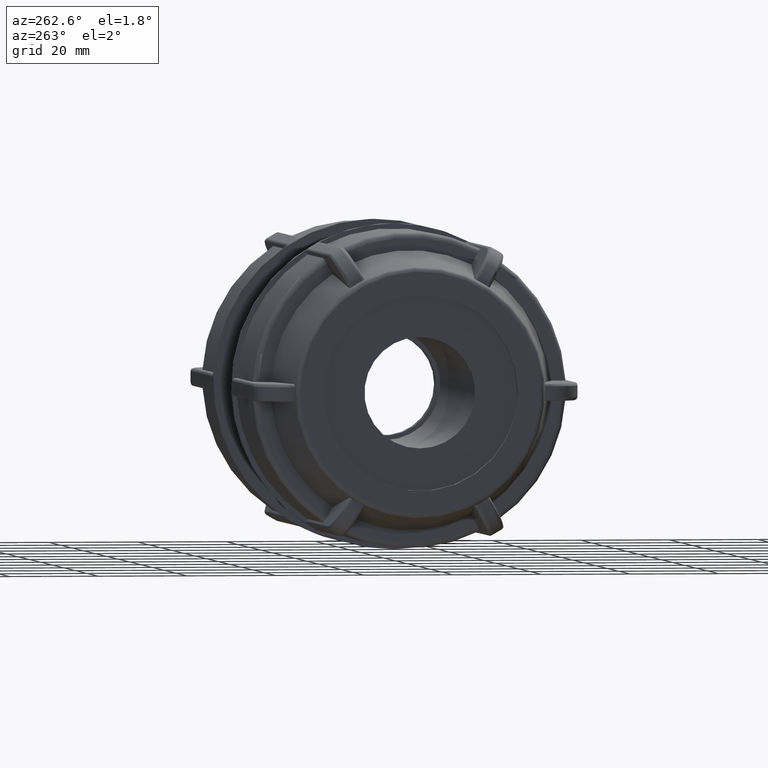
[diagram: clean part render]
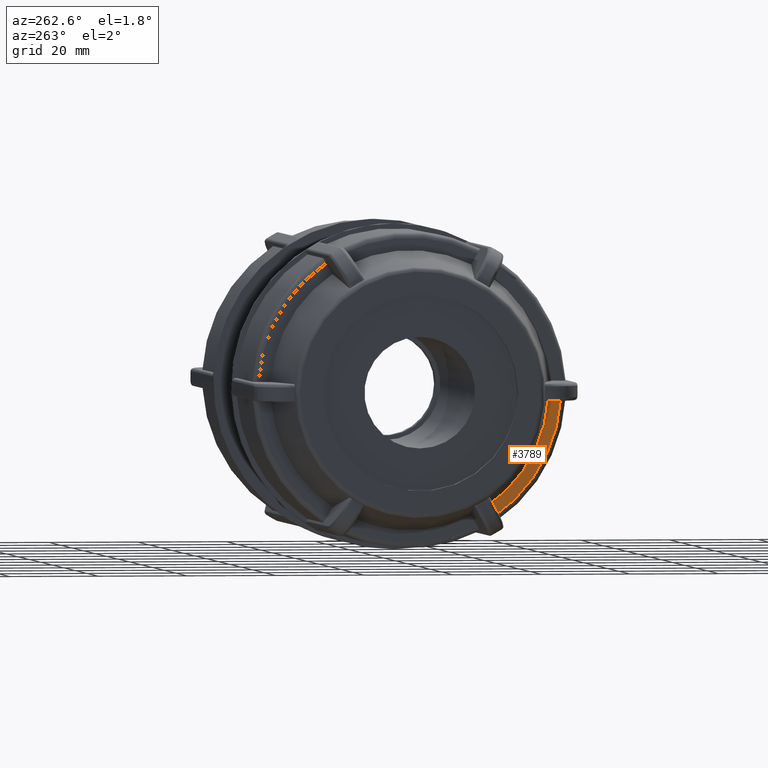
[diagram: same view with one face highlighted and labeled with its STEP entity id]
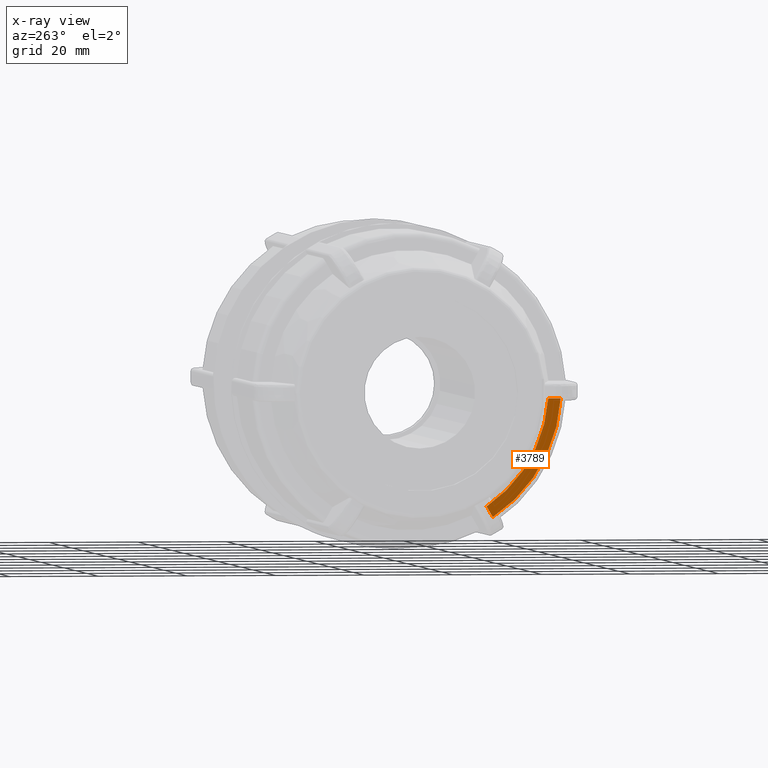
[diagram: x-ray of the same camera — body ghosted, the highlighted face saturated]
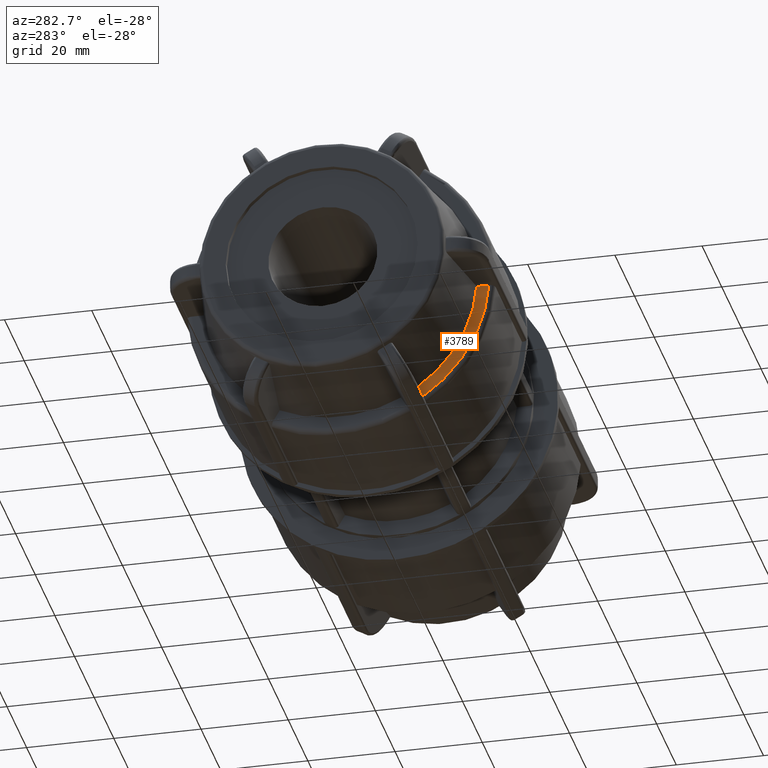
[diagram: same view with one face highlighted and labeled with its STEP entity id]
A machine part, auxiliary view. The second image highlights one B-rep face of the part: STEP entity #3789.
The next image is the same camera in x-ray: the body ghosted, the highlighted face saturated — about 0% of this face is hidden behind the body in this view.
A second angle (auxiliary view) of the same face is appended — the face is thin or edge-on in the first view.
In plain terms, the highlighted planar face has unit normal (1, 0, 0).
Its self-contained STEP definition (entity closure, byte-faithful):
#255=PLANE('',#4125);
#403=FACE_OUTER_BOUND('',#645,.T.);
#645=EDGE_LOOP('',(#2928,#2929,#2930,#2931));
#877=LINE('',#6010,#1105);
#917=LINE('',#6638,#1145);
#1105=VECTOR('',#4719,2.78117222986592);
#1145=VECTOR('',#4875,2.78117222986593);
#1361=CIRCLE('',#4126,34.135);
#1362=CIRCLE('',#4127,31.3590289824963);
#1610=VERTEX_POINT('',#5998);
#1611=VERTEX_POINT('',#6009);
#1678=VERTEX_POINT('',#6633);
#1679=VERTEX_POINT('',#6637);
#2036=EDGE_CURVE('',#1611,#1610,#877,.T.);
#2140=EDGE_CURVE('',#1679,#1678,#917,.T.);
#2156=EDGE_CURVE('',#1679,#1610,#1361,.T.);
#2157=EDGE_CURVE('',#1678,#1611,#1362,.T.);
#2928=ORIENTED_EDGE('',*,*,#2036,.T.);
#2929=ORIENTED_EDGE('',*,*,#2156,.F.);
#2930=ORIENTED_EDGE('',*,*,#2140,.T.);
#2931=ORIENTED_EDGE('',*,*,#2157,.T.);
#3789=ADVANCED_FACE('',(#403),#255,.F.);
#4125=AXIS2_PLACEMENT_3D('',#6686,#4902,#4903);
#4126=AXIS2_PLACEMENT_3D('',#6687,#4904,#4905);
#4127=AXIS2_PLACEMENT_3D('',#6688,#4906,#4907);
#4719=DIRECTION('',(1.53080849893419E-16,-0.500000000000001,-0.866025403784438));
#4875=DIRECTION('',(-3.06161699786838E-16,1.,-3.33066907387547E-16));
#4902=DIRECTION('center_axis',(1.,3.06161699786838E-16,0.));
#4903=DIRECTION('ref_axis',(0.,0.,-1.));
#4904=DIRECTION('center_axis',(1.,3.06161699786838E-16,0.));
#4905=DIRECTION('ref_axis',(3.06161699786838E-16,-1.,1.83697019872103E-16));
#4906=DIRECTION('center_axis',(1.,3.06161699786838E-16,0.));
#4907=DIRECTION('ref_axis',(0.,0.,-1.));
#5998=CARTESIAN_POINT('',(-44.45,-18.7702301777364,-28.5109923376019));
#6009=CARTESIAN_POINT('',(-44.45,-17.3796440628034,-26.1024265342382));
#6010=CARTESIAN_POINT('',(-44.45,-0.643360097983387,2.88566762273031));
#6633=CARTESIAN_POINT('',(-44.45,-31.295186510469,-1.99999999999999));
#6637=CARTESIAN_POINT('',(-44.45,-34.0763587403349,-1.99999999999999));
#6638=CARTESIAN_POINT('',(-44.45,-2.54306765289381,-2.));
#6686=CARTESIAN_POINT('Origin',(-44.45,31.3590289824962,0.));
#6687=CARTESIAN_POINT('Origin',(-44.45,-1.3608887555525E-14,0.));
#6688=CARTESIAN_POINT('Origin',(-44.45,-1.3608887555525E-14,0.));